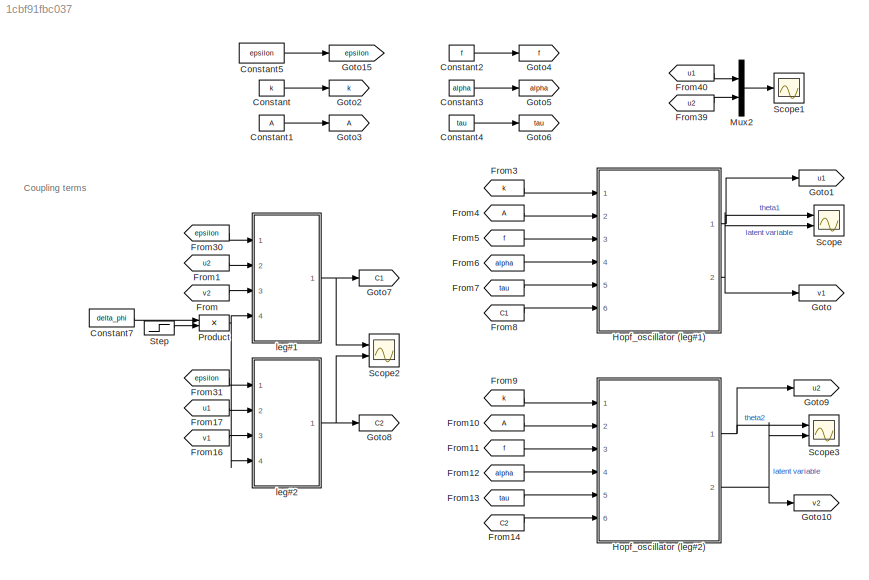
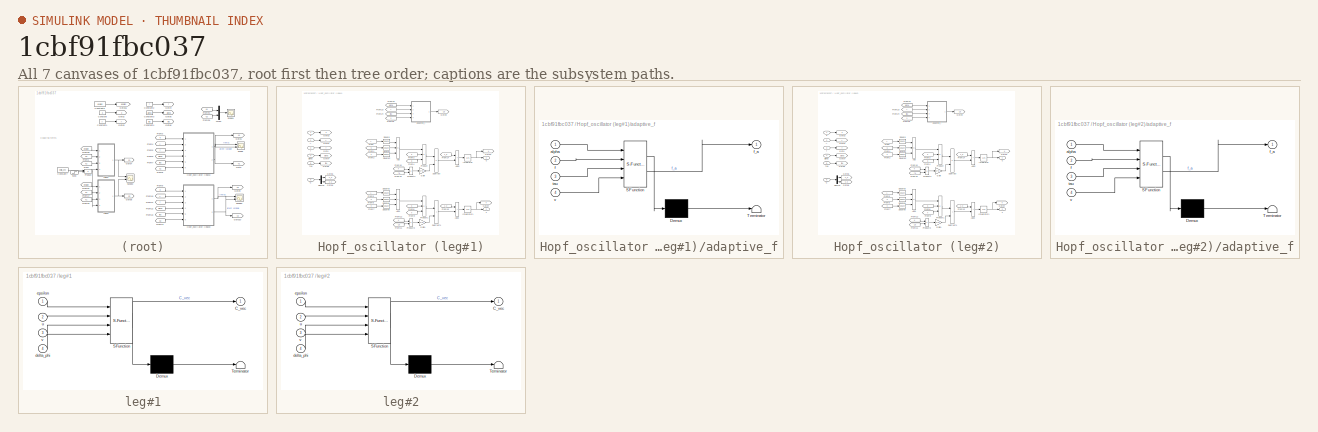
[diagram: thumbnail index - all 7 canvases of the model, root first then tree order]
MODEL slx_1cbf91fbc037
KIND model
CONFIG AbsTol = auto
CONFIG EnableMultiTasking = off
CONFIG FixedStep = auto
CONFIG MaxStep = auto
CONFIG MinStep = auto
CONFIG RelTol = 1e-3
CONFIG SampleTimeConstraint = Unconstrained
CONFIG SolverName = VariableStepAuto
CONFIG StartTime = 0.0
CONFIG StopTime = 10.0
BLOCK [Constant] Constant
  Value = k
BLOCK [Constant] Constant1
  Value = A
BLOCK [Constant] Constant2
  Value = f
BLOCK [Constant] Constant3
  Value = alpha
BLOCK [Constant] Constant4
  Value = tau
BLOCK [Constant] Constant5
  Value = epsilon
BLOCK [Constant] Constant7
  Value = delta_phi
BLOCK [From] From
  GotoTag = v2
BLOCK [From] From1
  GotoTag = u2
BLOCK [From] From10
BLOCK [From] From11
  GotoTag = f
BLOCK [From] From12
  GotoTag = alpha
BLOCK [From] From13
  GotoTag = tau
BLOCK [From] From14
  GotoTag = C2
BLOCK [From] From16
  GotoTag = v1
BLOCK [From] From17
  GotoTag = u1
BLOCK [From] From3
  GotoTag = k
BLOCK [From] From30
  GotoTag = epsilon
BLOCK [From] From31
  GotoTag = epsilon
BLOCK [From] From39
  GotoTag = u2
BLOCK [From] From4
BLOCK [From] From40
  GotoTag = u1
BLOCK [From] From5
  GotoTag = f
BLOCK [From] From6
  GotoTag = alpha
BLOCK [From] From7
  GotoTag = tau
BLOCK [From] From8
  GotoTag = C1
BLOCK [From] From9
  GotoTag = k
BLOCK [Goto] Goto
  GotoTag = v1
BLOCK [Goto] Goto1
  GotoTag = u1
BLOCK [Goto] Goto10
  GotoTag = v2
BLOCK [Goto] Goto15
  GotoTag = epsilon
BLOCK [Goto] Goto2
  GotoTag = k
BLOCK [Goto] Goto3
BLOCK [Goto] Goto4
  GotoTag = f
BLOCK [Goto] Goto5
  GotoTag = alpha
BLOCK [Goto] Goto6
  GotoTag = tau
BLOCK [Goto] Goto7
  GotoTag = C1
BLOCK [Goto] Goto8
  GotoTag = C2
BLOCK [Goto] Goto9
  GotoTag = u2
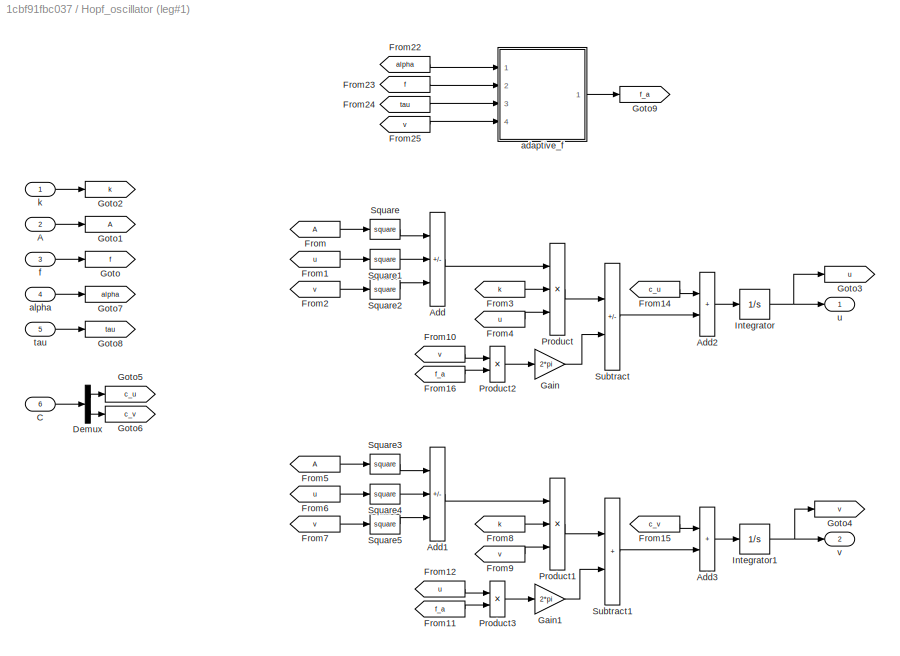
BLOCK [SubSystem] Hopf_oscillator (leg#1)
  Ports = [6, 2]
  RequestExecContextInheritance = off
BLOCK [Inport] Hopf_oscillator (leg#1)/A
  Port = 2
BLOCK [Sum] Hopf_oscillator (leg#1)/Add
  IconShape = rectangular
  Inputs = +--
  Ports = [3, 1]
BLOCK [Sum] Hopf_oscillator (leg#1)/Add1
  IconShape = rectangular
  Inputs = +--
  Ports = [3, 1]
BLOCK [Sum] Hopf_oscillator (leg#1)/Add2
  IconShape = rectangular
  Ports = [2, 1]
BLOCK [Sum] Hopf_oscillator (leg#1)/Add3
  IconShape = rectangular
  Ports = [2, 1]
BLOCK [Inport] Hopf_oscillator (leg#1)/C
  Port = 6
BLOCK [Demux] Hopf_oscillator (leg#1)/Demux
  Outputs = 2
  Ports = [1, 2]
BLOCK [From] Hopf_oscillator (leg#1)/From
BLOCK [From] Hopf_oscillator (leg#1)/From1
  GotoTag = u
BLOCK [From] Hopf_oscillator (leg#1)/From10
  GotoTag = v
BLOCK [From] Hopf_oscillator (leg#1)/From11
  GotoTag = f_a
BLOCK [From] Hopf_oscillator (leg#1)/From12
  GotoTag = u
BLOCK [From] Hopf_oscillator (leg#1)/From14
  GotoTag = c_u
BLOCK [From] Hopf_oscillator (leg#1)/From15
  GotoTag = c_v
BLOCK [From] Hopf_oscillator (leg#1)/From16
  GotoTag = f_a
BLOCK [From] Hopf_oscillator (leg#1)/From2
  GotoTag = v
BLOCK [From] Hopf_oscillator (leg#1)/From22
  GotoTag = alpha
BLOCK [From] Hopf_oscillator (leg#1)/From23
  GotoTag = f
BLOCK [From] Hopf_oscillator (leg#1)/From24
  GotoTag = tau
BLOCK [From] Hopf_oscillator (leg#1)/From25
  GotoTag = v
BLOCK [From] Hopf_oscillator (leg#1)/From3
  GotoTag = k
BLOCK [From] Hopf_oscillator (leg#1)/From4
  GotoTag = u
BLOCK [From] Hopf_oscillator (leg#1)/From5
BLOCK [From] Hopf_oscillator (leg#1)/From6
  GotoTag = u
BLOCK [From] Hopf_oscillator (leg#1)/From7
  GotoTag = v
BLOCK [From] Hopf_oscillator (leg#1)/From8
  GotoTag = k
BLOCK [From] Hopf_oscillator (leg#1)/From9
  GotoTag = v
BLOCK [Gain] Hopf_oscillator (leg#1)/Gain
  Gain = 2*pi
BLOCK [Gain] Hopf_oscillator (leg#1)/Gain1
  Gain = 2*pi
BLOCK [Goto] Hopf_oscillator (leg#1)/Goto
  GotoTag = f
BLOCK [Goto] Hopf_oscillator (leg#1)/Goto1
BLOCK [Goto] Hopf_oscillator (leg#1)/Goto2
  GotoTag = k
BLOCK [Goto] Hopf_oscillator (leg#1)/Goto3
  GotoTag = u
BLOCK [Goto] Hopf_oscillator (leg#1)/Goto4
  GotoTag = v
BLOCK [Goto] Hopf_oscillator (leg#1)/Goto5
  GotoTag = c_u
BLOCK [Goto] Hopf_oscillator (leg#1)/Goto6
  GotoTag = c_v
BLOCK [Goto] Hopf_oscillator (leg#1)/Goto7
  GotoTag = alpha
BLOCK [Goto] Hopf_oscillator (leg#1)/Goto8
  GotoTag = tau
BLOCK [Goto] Hopf_oscillator (leg#1)/Goto9
  GotoTag = f_a
BLOCK [Integrator] Hopf_oscillator (leg#1)/Integrator
  InitialCondition = 0.5
  Ports = [1, 1]
BLOCK [Integrator] Hopf_oscillator (leg#1)/Integrator1
  InitialCondition = 0.5
  Ports = [1, 1]
BLOCK [Product] Hopf_oscillator (leg#1)/Product
  Inputs = 3
  Ports = [3, 1]
BLOCK [Product] Hopf_oscillator (leg#1)/Product1
  Inputs = 3
  Ports = [3, 1]
BLOCK [Product] Hopf_oscillator (leg#1)/Product2
  Ports = [2, 1]
BLOCK [Product] Hopf_oscillator (leg#1)/Product3
  Ports = [2, 1]
BLOCK [Math] Hopf_oscillator (leg#1)/Square
  Operator = square
  Ports = [1, 1]
BLOCK [Math] Hopf_oscillator (leg#1)/Square1
  Operator = square
  Ports = [1, 1]
BLOCK [Math] Hopf_oscillator (leg#1)/Square2
  Operator = square
  Ports = [1, 1]
BLOCK [Math] Hopf_oscillator (leg#1)/Square3
  Operator = square
  Ports = [1, 1]
BLOCK [Math] Hopf_oscillator (leg#1)/Square4
  Operator = square
  Ports = [1, 1]
BLOCK [Math] Hopf_oscillator (leg#1)/Square5
  Operator = square
  Ports = [1, 1]
BLOCK [Sum] Hopf_oscillator (leg#1)/Subtract
  IconShape = rectangular
  Inputs = +-
  Ports = [2, 1]
BLOCK [Sum] Hopf_oscillator (leg#1)/Subtract1
  IconShape = rectangular
  Ports = [2, 1]
BLOCK [SubSystem] Hopf_oscillator (leg#1)/adaptive_f
  ErrorFcn = Stateflow.Translate.translate
  PermitHierarchicalResolution = ExplicitOnly
  Ports = [4, 1]
  RequestExecContextInheritance = off
  SFBlockType = MATLAB Function
  TreatAsAtomicUnit = on
BLOCK [Demux] Hopf_oscillator (leg#1)/adaptive_f/ Demux 
  Outputs = 1
  Ports = [1, 1]
BLOCK [S-Function] Hopf_oscillator (leg#1)/adaptive_f/ SFunction 
  EnableBusSupport = on
  FunctionName = sf_sfun
  PortCounts = [4 2]
  Ports = [4, 2]
  SFcnIsStateOwnerBlock = off
  SFunctionDeploymentMode = off
  Tag = Stateflow S-Function 2
BLOCK [Terminator] Hopf_oscillator (leg#1)/adaptive_f/ Terminator 
BLOCK [Inport] Hopf_oscillator (leg#1)/adaptive_f/alpha
BLOCK [Inport] Hopf_oscillator (leg#1)/adaptive_f/f
  Port = 2
BLOCK [Outport] Hopf_oscillator (leg#1)/adaptive_f/f_a
BLOCK [Inport] Hopf_oscillator (leg#1)/adaptive_f/tau
  Port = 3
BLOCK [Inport] Hopf_oscillator (leg#1)/adaptive_f/v
  Port = 4
BLOCK [Inport] Hopf_oscillator (leg#1)/alpha
  Port = 4
BLOCK [Inport] Hopf_oscillator (leg#1)/f
  Port = 3
BLOCK [Inport] Hopf_oscillator (leg#1)/k
BLOCK [Inport] Hopf_oscillator (leg#1)/tau
  Port = 5
BLOCK [Outport] Hopf_oscillator (leg#1)/u
BLOCK [Outport] Hopf_oscillator (leg#1)/v
  Port = 2
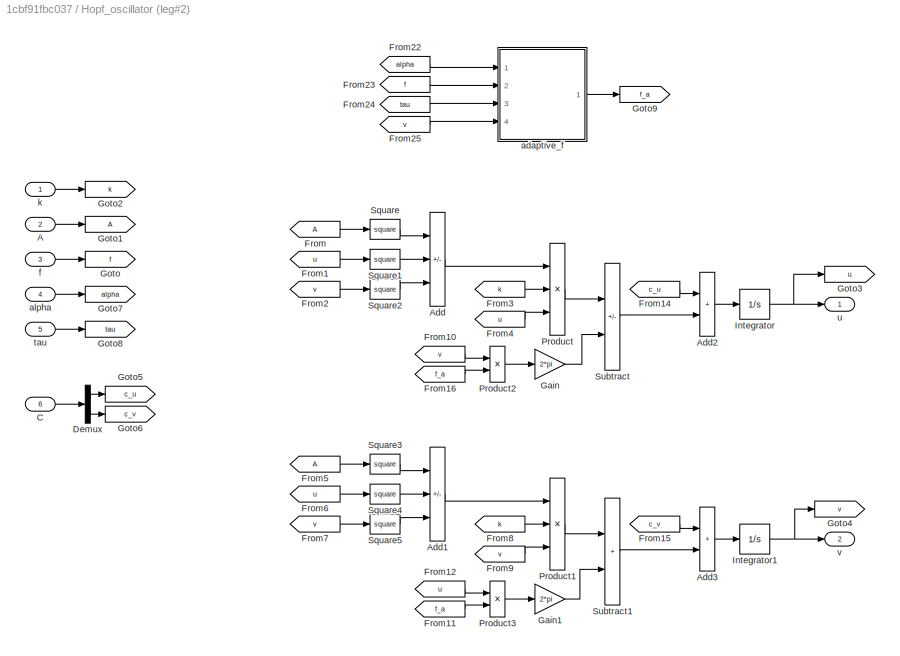
BLOCK [SubSystem] Hopf_oscillator (leg#2)
  Ports = [6, 2]
  RequestExecContextInheritance = off
BLOCK [Inport] Hopf_oscillator (leg#2)/A
  Port = 2
BLOCK [Sum] Hopf_oscillator (leg#2)/Add
  IconShape = rectangular
  Inputs = +--
  Ports = [3, 1]
BLOCK [Sum] Hopf_oscillator (leg#2)/Add1
  IconShape = rectangular
  Inputs = +--
  Ports = [3, 1]
BLOCK [Sum] Hopf_oscillator (leg#2)/Add2
  IconShape = rectangular
  Ports = [2, 1]
BLOCK [Sum] Hopf_oscillator (leg#2)/Add3
  IconShape = rectangular
  Ports = [2, 1]
BLOCK [Inport] Hopf_oscillator (leg#2)/C
  Port = 6
BLOCK [Demux] Hopf_oscillator (leg#2)/Demux
  Outputs = 2
  Ports = [1, 2]
BLOCK [From] Hopf_oscillator (leg#2)/From
BLOCK [From] Hopf_oscillator (leg#2)/From1
  GotoTag = u
BLOCK [From] Hopf_oscillator (leg#2)/From10
  GotoTag = v
BLOCK [From] Hopf_oscillator (leg#2)/From11
  GotoTag = f_a
BLOCK [From] Hopf_oscillator (leg#2)/From12
  GotoTag = u
BLOCK [From] Hopf_oscillator (leg#2)/From14
  GotoTag = c_u
BLOCK [From] Hopf_oscillator (leg#2)/From15
  GotoTag = c_v
BLOCK [From] Hopf_oscillator (leg#2)/From16
  GotoTag = f_a
BLOCK [From] Hopf_oscillator (leg#2)/From2
  GotoTag = v
BLOCK [From] Hopf_oscillator (leg#2)/From22
  GotoTag = alpha
BLOCK [From] Hopf_oscillator (leg#2)/From23
  GotoTag = f
BLOCK [From] Hopf_oscillator (leg#2)/From24
  GotoTag = tau
BLOCK [From] Hopf_oscillator (leg#2)/From25
  GotoTag = v
BLOCK [From] Hopf_oscillator (leg#2)/From3
  GotoTag = k
BLOCK [From] Hopf_oscillator (leg#2)/From4
  GotoTag = u
BLOCK [From] Hopf_oscillator (leg#2)/From5
BLOCK [From] Hopf_oscillator (leg#2)/From6
  GotoTag = u
BLOCK [From] Hopf_oscillator (leg#2)/From7
  GotoTag = v
BLOCK [From] Hopf_oscillator (leg#2)/From8
  GotoTag = k
BLOCK [From] Hopf_oscillator (leg#2)/From9
  GotoTag = v
BLOCK [Gain] Hopf_oscillator (leg#2)/Gain
  Gain = 2*pi
BLOCK [Gain] Hopf_oscillator (leg#2)/Gain1
  Gain = 2*pi
BLOCK [Goto] Hopf_oscillator (leg#2)/Goto
  GotoTag = f
BLOCK [Goto] Hopf_oscillator (leg#2)/Goto1
BLOCK [Goto] Hopf_oscillator (leg#2)/Goto2
  GotoTag = k
BLOCK [Goto] Hopf_oscillator (leg#2)/Goto3
  GotoTag = u
BLOCK [Goto] Hopf_oscillator (leg#2)/Goto4
  GotoTag = v
BLOCK [Goto] Hopf_oscillator (leg#2)/Goto5
  GotoTag = c_u
BLOCK [Goto] Hopf_oscillator (leg#2)/Goto6
  GotoTag = c_v
BLOCK [Goto] Hopf_oscillator (leg#2)/Goto7
  GotoTag = alpha
BLOCK [Goto] Hopf_oscillator (leg#2)/Goto8
  GotoTag = tau
BLOCK [Goto] Hopf_oscillator (leg#2)/Goto9
  GotoTag = f_a
BLOCK [Integrator] Hopf_oscillator (leg#2)/Integrator
  InitialCondition = 1
  Ports = [1, 1]
BLOCK [Integrator] Hopf_oscillator (leg#2)/Integrator1
  InitialCondition = 1
  Ports = [1, 1]
BLOCK [Product] Hopf_oscillator (leg#2)/Product
  Inputs = 3
  Ports = [3, 1]
BLOCK [Product] Hopf_oscillator (leg#2)/Product1
  Inputs = 3
  Ports = [3, 1]
BLOCK [Product] Hopf_oscillator (leg#2)/Product2
  Ports = [2, 1]
BLOCK [Product] Hopf_oscillator (leg#2)/Product3
  Ports = [2, 1]
BLOCK [Math] Hopf_oscillator (leg#2)/Square
  Operator = square
  Ports = [1, 1]
BLOCK [Math] Hopf_oscillator (leg#2)/Square1
  Operator = square
  Ports = [1, 1]
BLOCK [Math] Hopf_oscillator (leg#2)/Square2
  Operator = square
  Ports = [1, 1]
BLOCK [Math] Hopf_oscillator (leg#2)/Square3
  Operator = square
  Ports = [1, 1]
BLOCK [Math] Hopf_oscillator (leg#2)/Square4
  Operator = square
  Ports = [1, 1]
BLOCK [Math] Hopf_oscillator (leg#2)/Square5
  Operator = square
  Ports = [1, 1]
BLOCK [Sum] Hopf_oscillator (leg#2)/Subtract
  IconShape = rectangular
  Inputs = +-
  Ports = [2, 1]
BLOCK [Sum] Hopf_oscillator (leg#2)/Subtract1
  IconShape = rectangular
  Ports = [2, 1]
BLOCK [SubSystem] Hopf_oscillator (leg#2)/adaptive_f
  ErrorFcn = Stateflow.Translate.translate
  PermitHierarchicalResolution = ExplicitOnly
  Ports = [4, 1]
  RequestExecContextInheritance = off
  SFBlockType = MATLAB Function
  TreatAsAtomicUnit = on
BLOCK [Demux] Hopf_oscillator (leg#2)/adaptive_f/ Demux 
  Outputs = 1
  Ports = [1, 1]
BLOCK [S-Function] Hopf_oscillator (leg#2)/adaptive_f/ SFunction 
  EnableBusSupport = on
  FunctionName = sf_sfun
  PortCounts = [4 2]
  Ports = [4, 2]
  SFcnIsStateOwnerBlock = off
  SFunctionDeploymentMode = off
  Tag = Stateflow S-Function 1
BLOCK [Terminator] Hopf_oscillator (leg#2)/adaptive_f/ Terminator 
BLOCK [Inport] Hopf_oscillator (leg#2)/adaptive_f/alpha
BLOCK [Inport] Hopf_oscillator (leg#2)/adaptive_f/f
  Port = 2
BLOCK [Outport] Hopf_oscillator (leg#2)/adaptive_f/f_a
BLOCK [Inport] Hopf_oscillator (leg#2)/adaptive_f/tau
  Port = 3
BLOCK [Inport] Hopf_oscillator (leg#2)/adaptive_f/v
  Port = 4
BLOCK [Inport] Hopf_oscillator (leg#2)/alpha
  Port = 4
BLOCK [Inport] Hopf_oscillator (leg#2)/f
  Port = 3
BLOCK [Inport] Hopf_oscillator (leg#2)/k
BLOCK [Inport] Hopf_oscillator (leg#2)/tau
  Port = 5
BLOCK [Outport] Hopf_oscillator (leg#2)/u
BLOCK [Outport] Hopf_oscillator (leg#2)/v
  Port = 2
BLOCK [Mux] Mux2
  DisplayOption = bar
  Inputs = 2
  Ports = [2, 1]
BLOCK [Product] Product
  Ports = [2, 1]
BLOCK [Scope] Scope
  Floating = off
  NumInputPorts = 2
  Ports = [2]
  ScopeSpecificationString = Simulink.scopes.TimeScopeBlockCfg('CurrentConfiguration', extmgr.ConfigurationSet(extmgr.Configuration('Core','General UI',true),extmgr.Configuration('Core','Source UI',true),extmgr.Configuration('Sources','WiredSimulink',true,'DataLoggingVariableName','ScopeData1'),extmgr.Configuration('Visuals','Time Domain',true,'SerializedDisplays',{struct('MinYLimReal','-1.25','MaxYLimReal','1.25','YLabelReal...<+1484ch>
BLOCK [Scope] Scope1
  Floating = off
  NumInputPorts = 1
  Ports = [1]
  ScopeSpecificationString = Simulink.scopes.TimeScopeBlockCfg('CurrentConfiguration', extmgr.ConfigurationSet(extmgr.Configuration('Core','General UI',true),extmgr.Configuration('Core','Source UI',true),extmgr.Configuration('Sources','WiredSimulink',true,'DataLoggingVariableName','ScopeData3'),extmgr.Configuration('Visuals','Time Domain',true,'SerializedDisplays',{struct('MinYLimReal','-1.25','MaxYLimReal','1.25','YLabelReal...<+1483ch>
BLOCK [Scope] Scope2
  Floating = off
  NumInputPorts = 2
  Ports = [2]
  ScopeSpecificationString = Simulink.scopes.TimeScopeBlockCfg('CurrentConfiguration', extmgr.ConfigurationSet(extmgr.Configuration('Core','General UI',true),extmgr.Configuration('Core','Source UI',true),extmgr.Configuration('Sources','WiredSimulink',true),extmgr.Configuration('Visuals','Time Domain',true,'SerializedDisplays',{struct('MinYLimReal','-1.29504','MaxYLimReal','1.65168','YLabelReal','','MinYLimMag','0.00000','MaxY...<+1486ch>
BLOCK [Scope] Scope3
  Floating = off
  NumInputPorts = 2
  Ports = [2]
  ScopeSpecificationString = Simulink.scopes.TimeScopeBlockCfg('CurrentConfiguration', extmgr.ConfigurationSet(extmgr.Configuration('Core','General UI',true),extmgr.Configuration('Core','Source UI',true),extmgr.Configuration('Sources','WiredSimulink',true,'DataLoggingVariableName','ScopeData2'),extmgr.Configuration('Visuals','Time Domain',true,'SerializedDisplays',{struct('MinYLimReal','-1.25','MaxYLimReal','1.25','YLabelReal...<+1483ch>
BLOCK [Step] Step
  After = 2
  Before = -1
  SampleTime = 0
  Time = 5
BLOCK [SubSystem] leg#1
  ErrorFcn = Stateflow.Translate.translate
  PermitHierarchicalResolution = ExplicitOnly
  Ports = [4, 1]
  RequestExecContextInheritance = off
  SFBlockType = MATLAB Function
  TreatAsAtomicUnit = on
BLOCK [Demux] leg#1/ Demux 
  Outputs = 1
  Ports = [1, 1]
BLOCK [S-Function] leg#1/ SFunction 
  EnableBusSupport = on
  FunctionName = sf_sfun
  PortCounts = [4 2]
  Ports = [4, 2]
  SFcnIsStateOwnerBlock = off
  SFunctionDeploymentMode = off
  Tag = Stateflow S-Function 3
BLOCK [Terminator] leg#1/ Terminator 
BLOCK [Outport] leg#1/C_vec
BLOCK [Inport] leg#1/delta_phi
  Port = 4
BLOCK [Inport] leg#1/epsilon
BLOCK [Inport] leg#1/u
  Port = 2
BLOCK [Inport] leg#1/v
  Port = 3
BLOCK [SubSystem] leg#2
  ErrorFcn = Stateflow.Translate.translate
  PermitHierarchicalResolution = ExplicitOnly
  Ports = [4, 1]
  RequestExecContextInheritance = off
  SFBlockType = MATLAB Function
  TreatAsAtomicUnit = on
BLOCK [Demux] leg#2/ Demux 
  Outputs = 1
  Ports = [1, 1]
BLOCK [S-Function] leg#2/ SFunction 
  EnableBusSupport = on
  FunctionName = sf_sfun
  PortCounts = [4 2]
  Ports = [4, 2]
  SFcnIsStateOwnerBlock = off
  SFunctionDeploymentMode = off
  Tag = Stateflow S-Function 4
BLOCK [Terminator] leg#2/ Terminator 
BLOCK [Outport] leg#2/C_vec
BLOCK [Inport] leg#2/delta_phi
  Port = 4
BLOCK [Inport] leg#2/epsilon
BLOCK [Inport] leg#2/u
  Port = 2
BLOCK [Inport] leg#2/v
  Port = 3
ANNOTATION (root): Coupling terms
LINE Constant1:1 -> Goto3:1
LINE Constant2:1 -> Goto4:1
LINE Constant3:1 -> Goto5:1
LINE Constant4:1 -> Goto6:1
LINE Constant5:1 -> Goto15:1
LINE Constant7:1 -> Product:1
LINE Constant:1 -> Goto2:1
LINE From10:1 -> Hopf_oscillator (leg#2):2
LINE From11:1 -> Hopf_oscillator (leg#2):3
LINE From12:1 -> Hopf_oscillator (leg#2):4
LINE From13:1 -> Hopf_oscillator (leg#2):5
LINE From14:1 -> Hopf_oscillator (leg#2):6
LINE From16:1 -> leg#2:3
LINE From17:1 -> leg#2:2
LINE From1:1 -> leg#1:2
LINE From30:1 -> leg#1:1
LINE From31:1 -> leg#2:1
LINE From39:1 -> Mux2:2
LINE From3:1 -> Hopf_oscillator (leg#1):1
LINE From40:1 -> Mux2:1
LINE From4:1 -> Hopf_oscillator (leg#1):2
LINE From5:1 -> Hopf_oscillator (leg#1):3
LINE From6:1 -> Hopf_oscillator (leg#1):4
LINE From7:1 -> Hopf_oscillator (leg#1):5
LINE From8:1 -> Hopf_oscillator (leg#1):6
LINE From9:1 -> Hopf_oscillator (leg#2):1
LINE From:1 -> leg#1:3
LINE Hopf_oscillator (leg#1)/A:1 -> Hopf_oscillator (leg#1)/Goto1:1
LINE Hopf_oscillator (leg#1)/Add1:1 -> Hopf_oscillator (leg#1)/Product1:1
LINE Hopf_oscillator (leg#1)/Add2:1 -> Hopf_oscillator (leg#1)/Integrator:1
LINE Hopf_oscillator (leg#1)/Add3:1 -> Hopf_oscillator (leg#1)/Integrator1:1
LINE Hopf_oscillator (leg#1)/Add:1 -> Hopf_oscillator (leg#1)/Product:1
LINE Hopf_oscillator (leg#1)/C:1 -> Hopf_oscillator (leg#1)/Demux:1
LINE Hopf_oscillator (leg#1)/Demux:1 -> Hopf_oscillator (leg#1)/Goto5:1
LINE Hopf_oscillator (leg#1)/Demux:2 -> Hopf_oscillator (leg#1)/Goto6:1
LINE Hopf_oscillator (leg#1)/From10:1 -> Hopf_oscillator (leg#1)/Product2:1
LINE Hopf_oscillator (leg#1)/From11:1 -> Hopf_oscillator (leg#1)/Product3:2
LINE Hopf_oscillator (leg#1)/From12:1 -> Hopf_oscillator (leg#1)/Product3:1
LINE Hopf_oscillator (leg#1)/From14:1 -> Hopf_oscillator (leg#1)/Add2:1
LINE Hopf_oscillator (leg#1)/From15:1 -> Hopf_oscillator (leg#1)/Add3:1
LINE Hopf_oscillator (leg#1)/From16:1 -> Hopf_oscillator (leg#1)/Product2:2
LINE Hopf_oscillator (leg#1)/From1:1 -> Hopf_oscillator (leg#1)/Square1:1
LINE Hopf_oscillator (leg#1)/From22:1 -> Hopf_oscillator (leg#1)/adaptive_f:1
LINE Hopf_oscillator (leg#1)/From23:1 -> Hopf_oscillator (leg#1)/adaptive_f:2
LINE Hopf_oscillator (leg#1)/From24:1 -> Hopf_oscillator (leg#1)/adaptive_f:3
LINE Hopf_oscillator (leg#1)/From25:1 -> Hopf_oscillator (leg#1)/adaptive_f:4
LINE Hopf_oscillator (leg#1)/From2:1 -> Hopf_oscillator (leg#1)/Square2:1
LINE Hopf_oscillator (leg#1)/From3:1 -> Hopf_oscillator (leg#1)/Product:2
LINE Hopf_oscillator (leg#1)/From4:1 -> Hopf_oscillator (leg#1)/Product:3
LINE Hopf_oscillator (leg#1)/From5:1 -> Hopf_oscillator (leg#1)/Square3:1
LINE Hopf_oscillator (leg#1)/From6:1 -> Hopf_oscillator (leg#1)/Square4:1
LINE Hopf_oscillator (leg#1)/From7:1 -> Hopf_oscillator (leg#1)/Square5:1
LINE Hopf_oscillator (leg#1)/From8:1 -> Hopf_oscillator (leg#1)/Product1:2
LINE Hopf_oscillator (leg#1)/From9:1 -> Hopf_oscillator (leg#1)/Product1:3
LINE Hopf_oscillator (leg#1)/From:1 -> Hopf_oscillator (leg#1)/Square:1
LINE Hopf_oscillator (leg#1)/Gain1:1 -> Hopf_oscillator (leg#1)/Subtract1:2
LINE Hopf_oscillator (leg#1)/Gain:1 -> Hopf_oscillator (leg#1)/Subtract:2
NET Hopf_oscillator (leg#1)/Integrator1:1 -> Hopf_oscillator (leg#1)/Goto4:1, Hopf_oscillator (leg#1)/v:1
NET Hopf_oscillator (leg#1)/Integrator:1 -> Hopf_oscillator (leg#1)/Goto3:1, Hopf_oscillator (leg#1)/u:1
LINE Hopf_oscillator (leg#1)/Product1:1 -> Hopf_oscillator (leg#1)/Subtract1:1
LINE Hopf_oscillator (leg#1)/Product2:1 -> Hopf_oscillator (leg#1)/Gain:1
LINE Hopf_oscillator (leg#1)/Product3:1 -> Hopf_oscillator (leg#1)/Gain1:1
LINE Hopf_oscillator (leg#1)/Product:1 -> Hopf_oscillator (leg#1)/Subtract:1
LINE Hopf_oscillator (leg#1)/Square1:1 -> Hopf_oscillator (leg#1)/Add:2
LINE Hopf_oscillator (leg#1)/Square2:1 -> Hopf_oscillator (leg#1)/Add:3
LINE Hopf_oscillator (leg#1)/Square3:1 -> Hopf_oscillator (leg#1)/Add1:1
LINE Hopf_oscillator (leg#1)/Square4:1 -> Hopf_oscillator (leg#1)/Add1:2
LINE Hopf_oscillator (leg#1)/Square5:1 -> Hopf_oscillator (leg#1)/Add1:3
LINE Hopf_oscillator (leg#1)/Square:1 -> Hopf_oscillator (leg#1)/Add:1
LINE Hopf_oscillator (leg#1)/Subtract1:1 -> Hopf_oscillator (leg#1)/Add3:2
LINE Hopf_oscillator (leg#1)/Subtract:1 -> Hopf_oscillator (leg#1)/Add2:2
LINE Hopf_oscillator (leg#1)/adaptive_f:1 -> Hopf_oscillator (leg#1)/Goto9:1
LINE Hopf_oscillator (leg#1)/alpha:1 -> Hopf_oscillator (leg#1)/Goto7:1
LINE Hopf_oscillator (leg#1)/f:1 -> Hopf_oscillator (leg#1)/Goto:1
LINE Hopf_oscillator (leg#1)/k:1 -> Hopf_oscillator (leg#1)/Goto2:1
LINE Hopf_oscillator (leg#1)/tau:1 -> Hopf_oscillator (leg#1)/Goto8:1
NET Hopf_oscillator (leg#1):1 -> Goto1:1, Scope:1
NET Hopf_oscillator (leg#1):2 -> Goto:1, Scope:2
LINE Hopf_oscillator (leg#2)/A:1 -> Hopf_oscillator (leg#2)/Goto1:1
LINE Hopf_oscillator (leg#2)/Add1:1 -> Hopf_oscillator (leg#2)/Product1:1
LINE Hopf_oscillator (leg#2)/Add2:1 -> Hopf_oscillator (leg#2)/Integrator:1
LINE Hopf_oscillator (leg#2)/Add3:1 -> Hopf_oscillator (leg#2)/Integrator1:1
LINE Hopf_oscillator (leg#2)/Add:1 -> Hopf_oscillator (leg#2)/Product:1
LINE Hopf_oscillator (leg#2)/C:1 -> Hopf_oscillator (leg#2)/Demux:1
LINE Hopf_oscillator (leg#2)/Demux:1 -> Hopf_oscillator (leg#2)/Goto5:1
LINE Hopf_oscillator (leg#2)/Demux:2 -> Hopf_oscillator (leg#2)/Goto6:1
LINE Hopf_oscillator (leg#2)/From10:1 -> Hopf_oscillator (leg#2)/Product2:1
LINE Hopf_oscillator (leg#2)/From11:1 -> Hopf_oscillator (leg#2)/Product3:2
LINE Hopf_oscillator (leg#2)/From12:1 -> Hopf_oscillator (leg#2)/Product3:1
LINE Hopf_oscillator (leg#2)/From14:1 -> Hopf_oscillator (leg#2)/Add2:1
LINE Hopf_oscillator (leg#2)/From15:1 -> Hopf_oscillator (leg#2)/Add3:1
LINE Hopf_oscillator (leg#2)/From16:1 -> Hopf_oscillator (leg#2)/Product2:2
LINE Hopf_oscillator (leg#2)/From1:1 -> Hopf_oscillator (leg#2)/Square1:1
LINE Hopf_oscillator (leg#2)/From22:1 -> Hopf_oscillator (leg#2)/adaptive_f:1
LINE Hopf_oscillator (leg#2)/From23:1 -> Hopf_oscillator (leg#2)/adaptive_f:2
LINE Hopf_oscillator (leg#2)/From24:1 -> Hopf_oscillator (leg#2)/adaptive_f:3
LINE Hopf_oscillator (leg#2)/From25:1 -> Hopf_oscillator (leg#2)/adaptive_f:4
LINE Hopf_oscillator (leg#2)/From2:1 -> Hopf_oscillator (leg#2)/Square2:1
LINE Hopf_oscillator (leg#2)/From3:1 -> Hopf_oscillator (leg#2)/Product:2
LINE Hopf_oscillator (leg#2)/From4:1 -> Hopf_oscillator (leg#2)/Product:3
LINE Hopf_oscillator (leg#2)/From5:1 -> Hopf_oscillator (leg#2)/Square3:1
LINE Hopf_oscillator (leg#2)/From6:1 -> Hopf_oscillator (leg#2)/Square4:1
LINE Hopf_oscillator (leg#2)/From7:1 -> Hopf_oscillator (leg#2)/Square5:1
LINE Hopf_oscillator (leg#2)/From8:1 -> Hopf_oscillator (leg#2)/Product1:2
LINE Hopf_oscillator (leg#2)/From9:1 -> Hopf_oscillator (leg#2)/Product1:3
LINE Hopf_oscillator (leg#2)/From:1 -> Hopf_oscillator (leg#2)/Square:1
LINE Hopf_oscillator (leg#2)/Gain1:1 -> Hopf_oscillator (leg#2)/Subtract1:2
LINE Hopf_oscillator (leg#2)/Gain:1 -> Hopf_oscillator (leg#2)/Subtract:2
NET Hopf_oscillator (leg#2)/Integrator1:1 -> Hopf_oscillator (leg#2)/Goto4:1, Hopf_oscillator (leg#2)/v:1
NET Hopf_oscillator (leg#2)/Integrator:1 -> Hopf_oscillator (leg#2)/Goto3:1, Hopf_oscillator (leg#2)/u:1
LINE Hopf_oscillator (leg#2)/Product1:1 -> Hopf_oscillator (leg#2)/Subtract1:1
LINE Hopf_oscillator (leg#2)/Product2:1 -> Hopf_oscillator (leg#2)/Gain:1
LINE Hopf_oscillator (leg#2)/Product3:1 -> Hopf_oscillator (leg#2)/Gain1:1
LINE Hopf_oscillator (leg#2)/Product:1 -> Hopf_oscillator (leg#2)/Subtract:1
LINE Hopf_oscillator (leg#2)/Square1:1 -> Hopf_oscillator (leg#2)/Add:2
LINE Hopf_oscillator (leg#2)/Square2:1 -> Hopf_oscillator (leg#2)/Add:3
LINE Hopf_oscillator (leg#2)/Square3:1 -> Hopf_oscillator (leg#2)/Add1:1
LINE Hopf_oscillator (leg#2)/Square4:1 -> Hopf_oscillator (leg#2)/Add1:2
LINE Hopf_oscillator (leg#2)/Square5:1 -> Hopf_oscillator (leg#2)/Add1:3
LINE Hopf_oscillator (leg#2)/Square:1 -> Hopf_oscillator (leg#2)/Add:1
LINE Hopf_oscillator (leg#2)/Subtract1:1 -> Hopf_oscillator (leg#2)/Add3:2
LINE Hopf_oscillator (leg#2)/Subtract:1 -> Hopf_oscillator (leg#2)/Add2:2
LINE Hopf_oscillator (leg#2)/adaptive_f:1 -> Hopf_oscillator (leg#2)/Goto9:1
LINE Hopf_oscillator (leg#2)/alpha:1 -> Hopf_oscillator (leg#2)/Goto7:1
LINE Hopf_oscillator (leg#2)/f:1 -> Hopf_oscillator (leg#2)/Goto:1
LINE Hopf_oscillator (leg#2)/k:1 -> Hopf_oscillator (leg#2)/Goto2:1
LINE Hopf_oscillator (leg#2)/tau:1 -> Hopf_oscillator (leg#2)/Goto8:1
NET Hopf_oscillator (leg#2):1 -> Goto9:1, Scope3:1
NET Hopf_oscillator (leg#2):2 -> Goto10:1, Scope3:2
LINE Mux2:1 -> Scope1:1
NET Product:1 -> leg#1:4, leg#2:4
LINE Step:1 -> Product:2
NET leg#1:1 -> Goto7:1, Scope2:1
NET leg#2:1 -> Goto8:1, Scope2:2
note: NET lines group one-source signal fan-out (src -> all destinations, sorted); 1:1 wires keep LINE
CHART Hopf_oscillator (leg#2)/adaptive_f states=1 transitions=1
  STATE_LABEL 'eML_blk_kernel()'
  STATE_LABEL "SCRIPT:\n % calculate the adaptive frequency f through (4) in \n % 'Design and Locomotion Control of a Biomimetic Underwater Vehicle ... '\nfunction f_a = adaptive_f(alpha, f, tau, v)\n    f1 = f/2/alpha;\n    f2 = (2*alpha - 1)*f/(2*alpha*(1 - alpha)*(1 + exp(-tau*v)));\n    f_a = f1 + f2;\n"
CHART Hopf_oscillator (leg#1)/adaptive_f states=1 transitions=1
  STATE_LABEL 'eML_blk_kernel()'
  STATE_LABEL "SCRIPT:\n % calculate the adaptive frequency f through (4) in \n % 'Design and Locomotion Control of a Biomimetic Underwater Vehicle ... '\nfunction f_a = adaptive_f(alpha, f, tau, v)\n    f1 = f/2/alpha;\n    f2 = (2*alpha - 1)*f/(2*alpha*(1 - alpha)*(1 + exp(-tau*v)));\n    f_a = f1 + f2;\n"
CHART leg#1 states=1 transitions=1
  STATE_LABEL 'eML_blk_kernel()'
  STATE_LABEL 'SCRIPT:\nfunction C_vec = fcn(epsilon, u, v, delta_phi)\n    C1 = 0;\n    C2 = epsilon*(-u*sin(delta_phi) + v*cos(delta_phi));\n    C_vec = [C1; C2];\n    \n'
CHART leg#2 states=1 transitions=1
  STATE_LABEL 'eML_blk_kernel()'
  STATE_LABEL 'SCRIPT:\nfunction C_vec = fcn(epsilon, u, v, delta_phi)\n    C1 = 0;\n    C2 = epsilon*(u*sin(delta_phi) + v*cos(delta_phi));\n    C_vec = [C1; C2];\n    \n'
CHART  states=0 transitions=0
CHART  states=0 transitions=0
CHART  states=0 transitions=0
CHART  states=0 transitions=0
